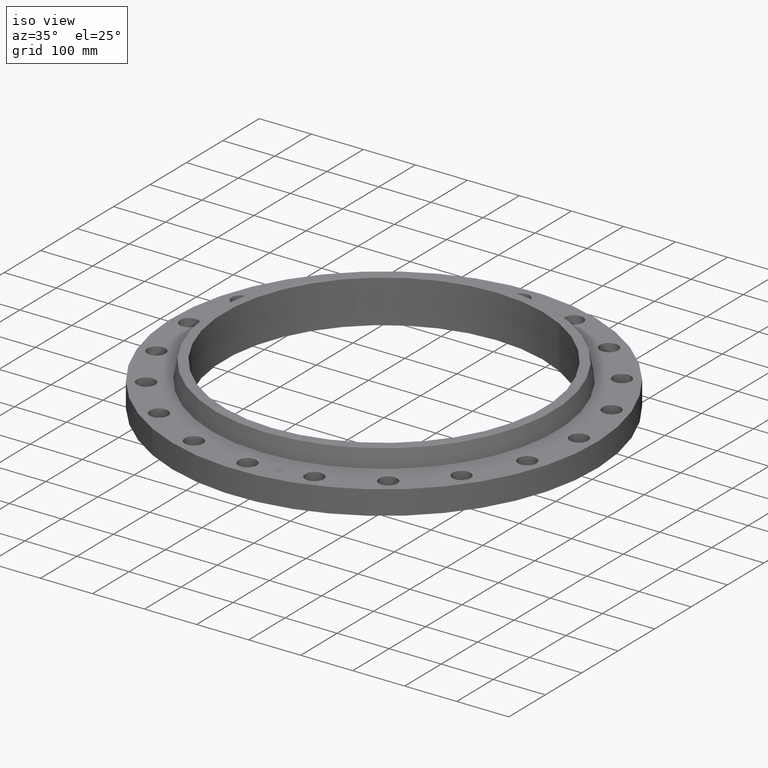
[diagram: clean part render]
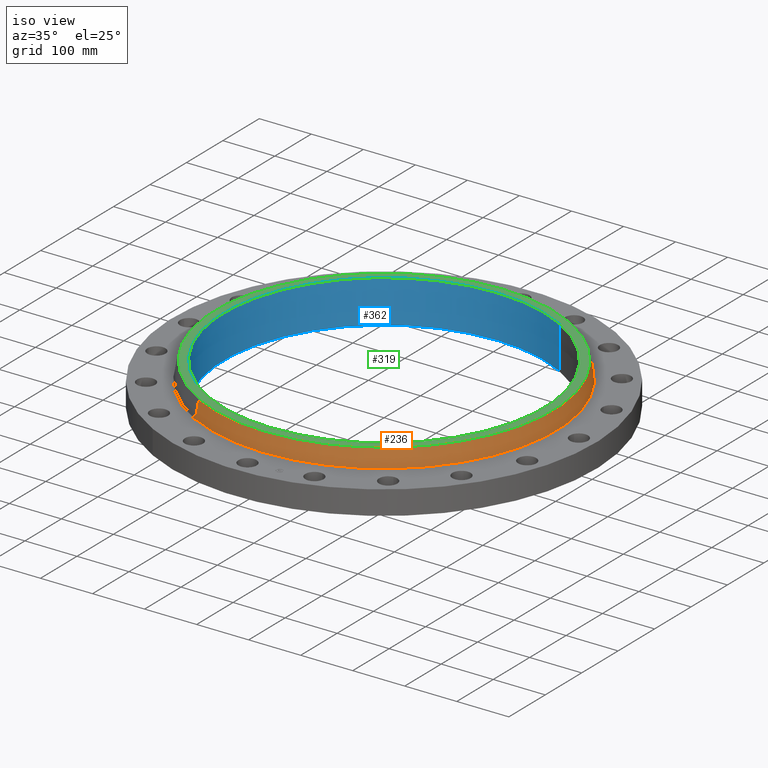
[diagram: same view with three faces highlighted in distinct colors, each labeled with its STEP entity id]
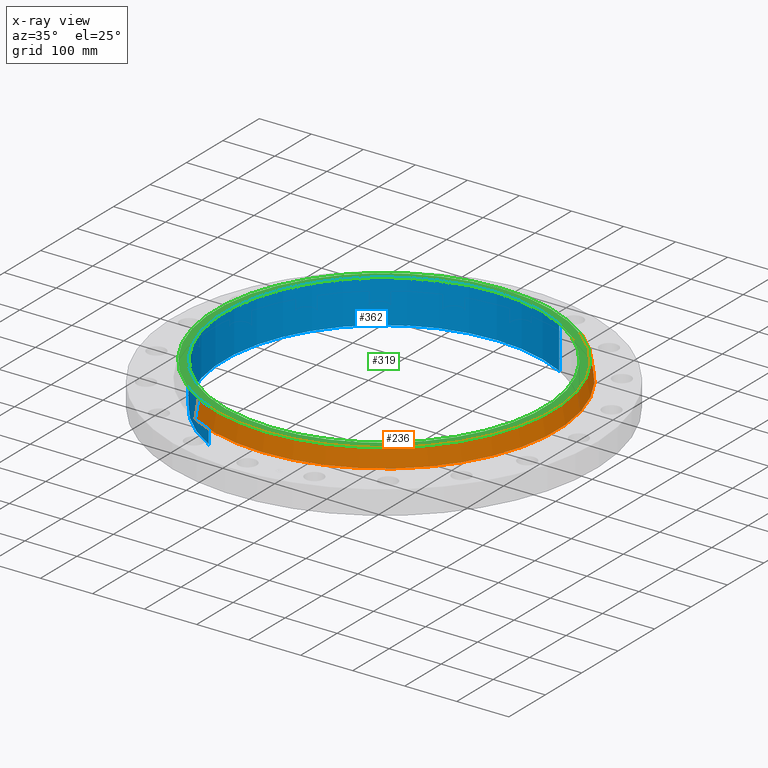
[diagram: x-ray of the same camera — body ghosted, the three highlighted faces saturated]
A machine part, iso view with three faces highlighted in distinct colors.
The next image is the same camera in x-ray (body ghosted, the three faces saturated) — at least one of them is partly hidden behind the body in this view.
Their STEP definitions:

[orange] entity #236 — the highlighted conical surface has half-angle 10 deg.
#172=AXIS2_PLACEMENT_3D('Circle Axis2P3D',#170,#171,$) ;
#209=AXIS2_PLACEMENT_3D('Cone Axis2P3D',#206,#207,#208) ;
#220=AXIS2_PLACEMENT_3D('Circle Axis2P3D',#218,#219,$) ;
#167=CARTESIAN_POINT('Vertex',(6.25710616251,11.4535560039,1.85958110935)) ;
#170=CARTESIAN_POINT('Axis2P3D Location',(0.,0.,1.85958110935)) ;
#174=CARTESIAN_POINT('Vertex',(-6.25710616251,-11.4535560039,1.85958110935)) ;
#206=CARTESIAN_POINT('Axis2P3D Location',(0.,0.,3.14041889067)) ;
#211=CARTESIAN_POINT('Line Origine',(6.20296793039,11.3544566347,2.50000000001)) ;
#215=CARTESIAN_POINT('Vertex',(6.14882969826,11.2553572656,3.14041889067)) ;
#218=CARTESIAN_POINT('Axis2P3D Location',(0.,0.,3.14041889067)) ;
#222=CARTESIAN_POINT('Vertex',(-6.14882969826,-11.2553572656,3.14041889067)) ;
#225=CARTESIAN_POINT('Line Origine',(-6.20296793039,-11.3544566347,2.50000000001)) ;
#171=DIRECTION('Axis2P3D Direction',(0.,0.,-0.0393700787402)) ;
#207=DIRECTION('Axis2P3D Direction',(0.,0.,-0.0393700787402)) ;
#208=DIRECTION('Axis2P3D XDirection',(-0.0188750212049,-0.0345504945626,0.)) ;
#212=DIRECTION('Vector Direction',(0.00327761303565,0.00599963041829,-0.03877195878)) ;
#219=DIRECTION('Axis2P3D Direction',(0.,0.,-0.0393700787402)) ;
#226=DIRECTION('Vector Direction',(-0.00327761303565,-0.00599963041829,-0.03877195878)) ;
#213=VECTOR('Line Direction',#212,0.0393700787402) ;
#227=VECTOR('Line Direction',#226,0.0393700787402) ;
#231=ORIENTED_EDGE('',*,*,#176,.F.) ;
#232=ORIENTED_EDGE('',*,*,#217,.T.) ;
#233=ORIENTED_EDGE('',*,*,#224,.T.) ;
#234=ORIENTED_EDGE('',*,*,#229,.F.) ;
#236=ADVANCED_FACE('PartBody',(#235),#210,.T.) ;
#173=CIRCLE('generated circle',#172,13.0512575127) ;
#221=CIRCLE('generated circle',#220,12.825411254) ;
#210=CONICAL_SURFACE('Cone',#209,12.825411254,0.174532925199) ;
#176=EDGE_CURVE('',#168,#175,#173,.T.) ;
#217=EDGE_CURVE('',#168,#216,#214,.F.) ;
#224=EDGE_CURVE('',#216,#223,#221,.T.) ;
#229=EDGE_CURVE('',#175,#223,#228,.F.) ;
#230=EDGE_LOOP('',(#231,#232,#233,#234)) ;
#235=FACE_OUTER_BOUND('',#230,.T.) ;
#214=LINE('Line',#211,#213) ;
#228=LINE('Line',#225,#227) ;
#168=VERTEX_POINT('',#167) ;
#175=VERTEX_POINT('',#174) ;
#216=VERTEX_POINT('',#215) ;
#223=VERTEX_POINT('',#222) ;

[blue] entity #362 — the highlighted cylindrical surface (partial cylindrical patch) has radius 307.975 mm, axis along (0, 0, -1).
#303=AXIS2_PLACEMENT_3D('Circle Axis2P3D',#301,#302,$) ;
#323=AXIS2_PLACEMENT_3D('Cylinder Axis2P3D',#320,#321,#322) ;
#353=AXIS2_PLACEMENT_3D('Circle Axis2P3D',#351,#352,$) ;
#301=CARTESIAN_POINT('Axis2P3D Location',(0.,0.,3.19000000001)) ;
#305=CARTESIAN_POINT('Vertex',(-5.8130346556,-10.640688563,3.19000000001)) ;
#307=CARTESIAN_POINT('Vertex',(5.8130346556,10.640688563,3.19000000001)) ;
#320=CARTESIAN_POINT('Axis2P3D Location',(0.,0.,1.56375000001)) ;
#325=CARTESIAN_POINT('Line Origine',(5.8130346556,10.640688563,1.56375000001)) ;
#329=CARTESIAN_POINT('Vertex',(5.8130346556,10.640688563,-0.0625000000003)) ;
#336=CARTESIAN_POINT('Vertex',(-5.8130346556,-10.640688563,-0.0625000000003)) ;
#339=CARTESIAN_POINT('Line Origine',(-5.8130346556,-10.640688563,1.56375000001)) ;
#351=CARTESIAN_POINT('Axis2P3D Location',(0.,0.,-0.0625000000003)) ;
#302=DIRECTION('Axis2P3D Direction',(0.,0.,-0.0393700787402)) ;
#321=DIRECTION('Axis2P3D Direction',(0.,0.,-0.0393700787402)) ;
#322=DIRECTION('Axis2P3D XDirection',(-0.0188750212049,-0.0345504945626,0.)) ;
#326=DIRECTION('Vector Direction',(0.,0.,-0.0393700787402)) ;
#340=DIRECTION('Vector Direction',(0.,0.,-0.0393700787402)) ;
#352=DIRECTION('Axis2P3D Direction',(0.,0.,-0.0393700787402)) ;
#327=VECTOR('Line Direction',#326,0.0393700787402) ;
#341=VECTOR('Line Direction',#340,0.0393700787402) ;
#357=ORIENTED_EDGE('',*,*,#309,.F.) ;
#358=ORIENTED_EDGE('',*,*,#343,.T.) ;
#359=ORIENTED_EDGE('',*,*,#355,.T.) ;
#360=ORIENTED_EDGE('',*,*,#331,.F.) ;
#362=ADVANCED_FACE('PartBody',(#361),#324,.F.) ;
#304=CIRCLE('generated circle',#303,12.125) ;
#354=CIRCLE('generated circle',#353,12.125) ;
#324=CYLINDRICAL_SURFACE('generated cylinder',#323,12.125) ;
#309=EDGE_CURVE('',#306,#308,#304,.T.) ;
#331=EDGE_CURVE('',#308,#330,#328,.T.) ;
#343=EDGE_CURVE('',#306,#337,#342,.T.) ;
#355=EDGE_CURVE('',#337,#330,#354,.T.) ;
#356=EDGE_LOOP('',(#357,#358,#359,#360)) ;
#361=FACE_OUTER_BOUND('',#356,.T.) ;
#328=LINE('Line',#325,#327) ;
#342=LINE('Line',#339,#341) ;
#306=VERTEX_POINT('',#305) ;
#308=VERTEX_POINT('',#307) ;
#330=VERTEX_POINT('',#329) ;
#337=VERTEX_POINT('',#336) ;

[green] entity #319 — the highlighted planar face has unit normal (0, 0, -1).
#263=AXIS2_PLACEMENT_3D('Circle Axis2P3D',#261,#262,$) ;
#282=AXIS2_PLACEMENT_3D('Circle Axis2P3D',#280,#281,$) ;
#295=AXIS2_PLACEMENT_3D('Plane Axis2P3D',#292,#293,#294) ;
#303=AXIS2_PLACEMENT_3D('Circle Axis2P3D',#301,#302,$) ;
#312=AXIS2_PLACEMENT_3D('Circle Axis2P3D',#310,#311,$) ;
#258=CARTESIAN_POINT('Vertex',(6.12050117902,11.2035022589,3.19000000001)) ;
#261=CARTESIAN_POINT('Axis2P3D Location',(0.,0.,3.19000000001)) ;
#265=CARTESIAN_POINT('Vertex',(-6.12050117902,-11.2035022589,3.19000000001)) ;
#280=CARTESIAN_POINT('Axis2P3D Location',(0.,0.,3.19000000001)) ;
#292=CARTESIAN_POINT('Axis2P3D Location',(0.,12.7663227888,3.19000000001)) ;
#301=CARTESIAN_POINT('Axis2P3D Location',(0.,0.,3.19000000001)) ;
#305=CARTESIAN_POINT('Vertex',(-5.8130346556,-10.640688563,3.19000000001)) ;
#307=CARTESIAN_POINT('Vertex',(5.8130346556,10.640688563,3.19000000001)) ;
#310=CARTESIAN_POINT('Axis2P3D Location',(0.,0.,3.19000000001)) ;
#262=DIRECTION('Axis2P3D Direction',(0.,0.,-0.0393700787402)) ;
#281=DIRECTION('Axis2P3D Direction',(0.,0.,-0.0393700787402)) ;
#293=DIRECTION('Axis2P3D Direction',(0.,0.,-0.0393700787402)) ;
#294=DIRECTION('Axis2P3D XDirection',(0.0393700787402,0.,0.)) ;
#302=DIRECTION('Axis2P3D Direction',(0.,0.,-0.0393700787402)) ;
#311=DIRECTION('Axis2P3D Direction',(0.,0.,-0.0393700787402)) ;
#298=ORIENTED_EDGE('',*,*,#267,.F.) ;
#299=ORIENTED_EDGE('',*,*,#284,.F.) ;
#316=ORIENTED_EDGE('',*,*,#309,.T.) ;
#317=ORIENTED_EDGE('',*,*,#314,.T.) ;
#318=FACE_BOUND('',#315,.T.) ;
#319=ADVANCED_FACE('PartBody',(#300,#318),#296,.F.) ;
#264=CIRCLE('generated circle',#263,12.7663227888) ;
#283=CIRCLE('generated circle',#282,12.7663227888) ;
#304=CIRCLE('generated circle',#303,12.125) ;
#313=CIRCLE('generated circle',#312,12.125) ;
#267=EDGE_CURVE('',#259,#266,#264,.T.) ;
#284=EDGE_CURVE('',#266,#259,#283,.T.) ;
#309=EDGE_CURVE('',#306,#308,#304,.T.) ;
#314=EDGE_CURVE('',#308,#306,#313,.T.) ;
#297=EDGE_LOOP('',(#298,#299)) ;
#315=EDGE_LOOP('',(#316,#317)) ;
#300=FACE_OUTER_BOUND('',#297,.T.) ;
#296=PLANE('',#295) ;
#259=VERTEX_POINT('',#258) ;
#266=VERTEX_POINT('',#265) ;
#306=VERTEX_POINT('',#305) ;
#308=VERTEX_POINT('',#307) ;